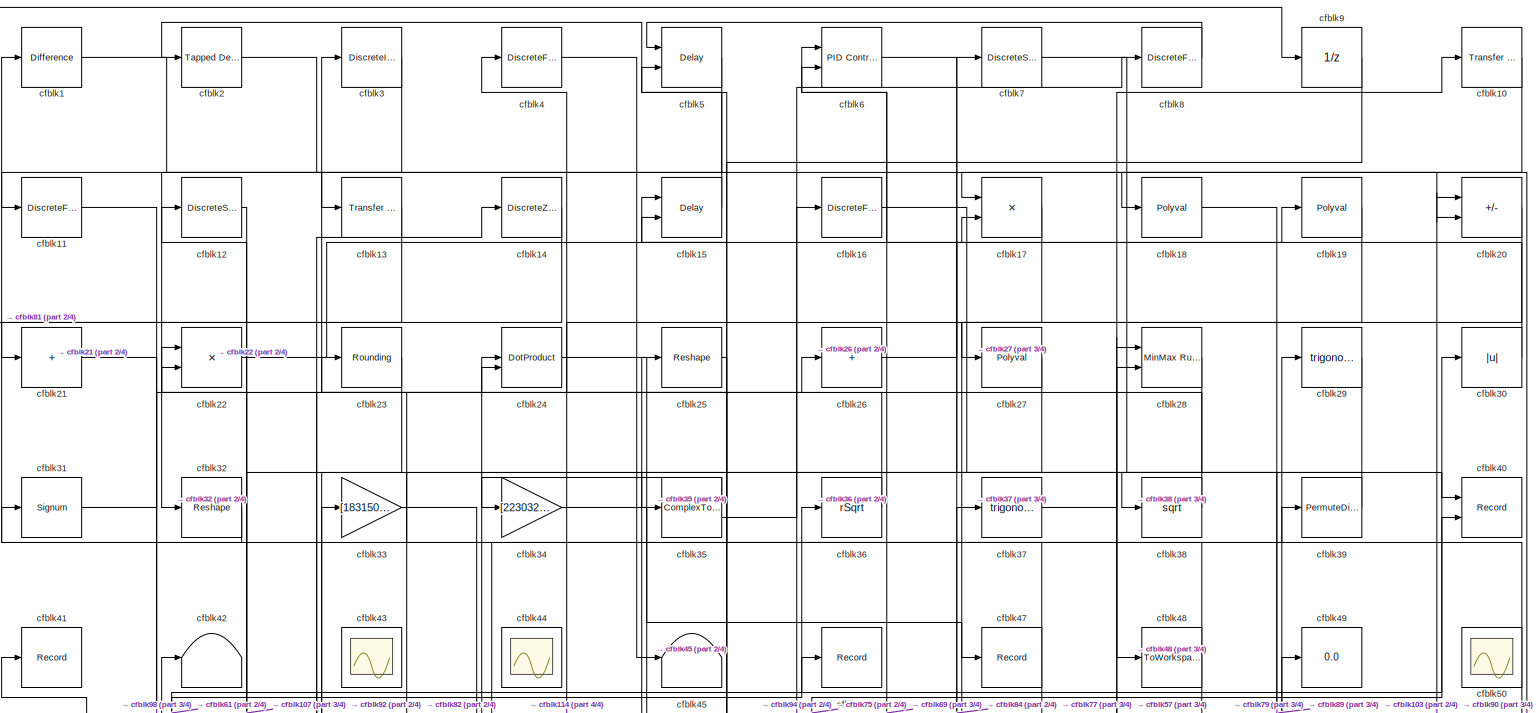
[diagram: root canvas - part 1/4, full width, top band]
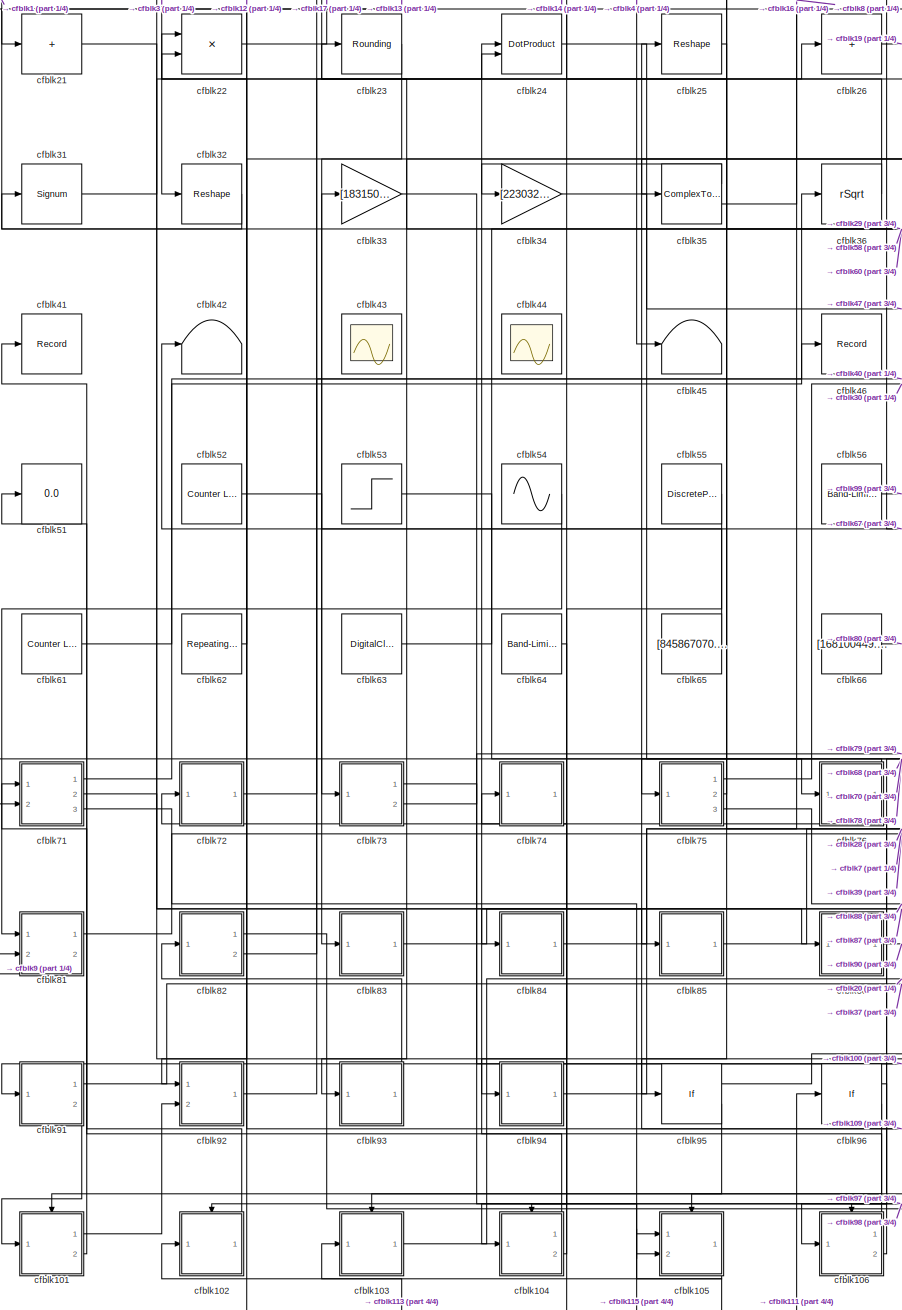
[diagram: root canvas - part 2/4, left side, full height]
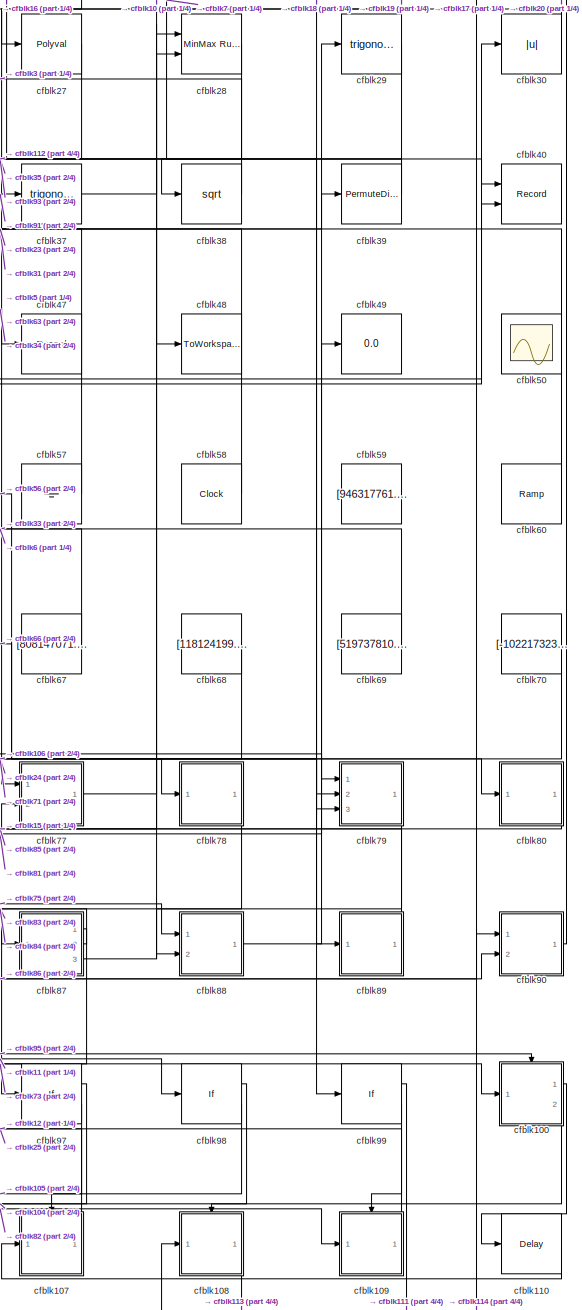
[diagram: root canvas - part 3/4, right side, full height]
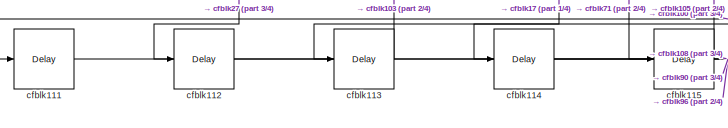
[diagram: root canvas - part 4/4, bottom left region]
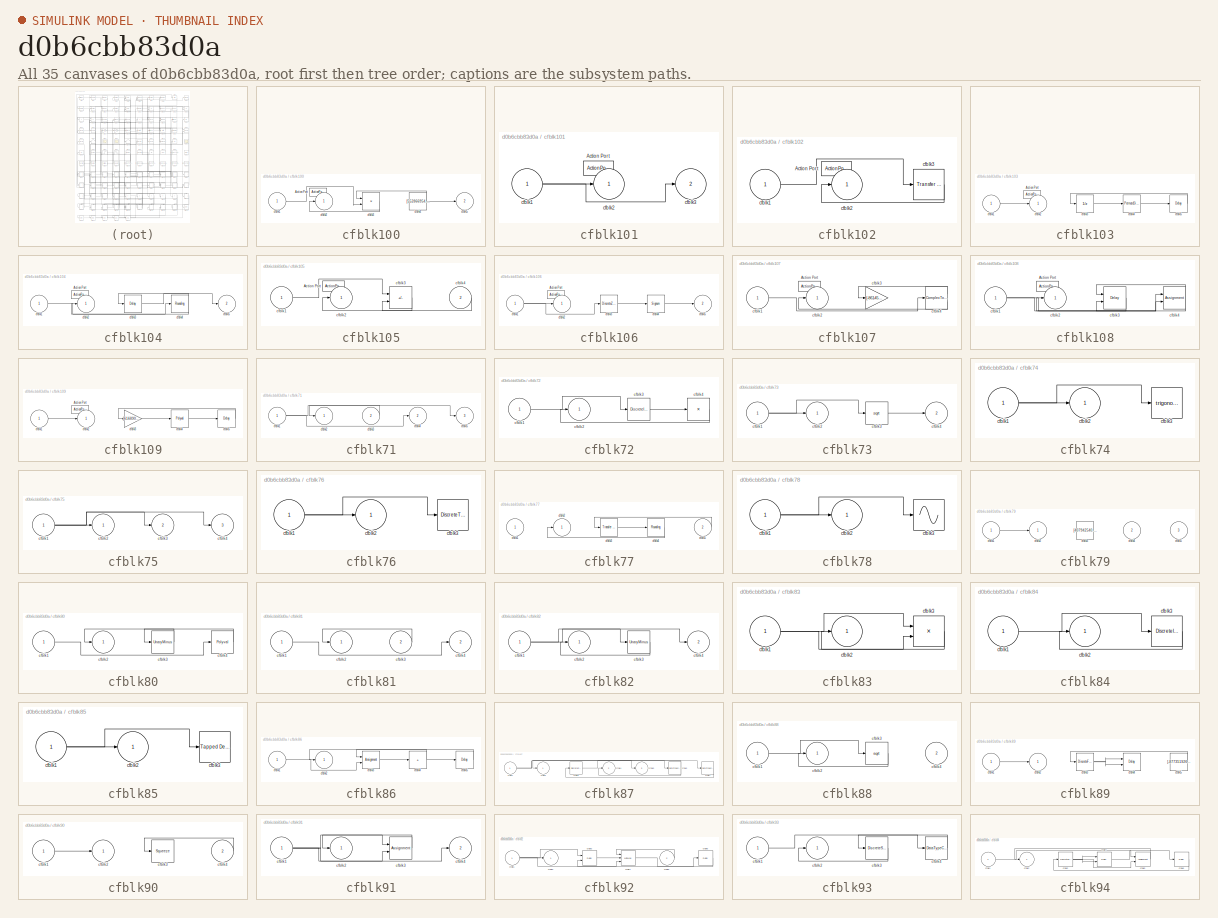
[diagram: thumbnail index - all 35 canvases of the model, root first then tree order]
MODEL slx_d0b6cbb83d0a
KIND model
CONFIG AbsTol = auto
CONFIG EnableMultiTasking = off
CONFIG FixedStep = auto
CONFIG MaxStep = auto
CONFIG MinStep = auto
CONFIG RelTol = 1e-3
CONFIG SampleTimeConstraint = Unconstrained
CONFIG SolverName = VariableStepAuto
CONFIG StartTime = 0.0
CONFIG StopTime = 10.0
BLOCK [Reference] cfblk1  REF=simulink/Discrete/Difference
  Ports = [1, 1]
  SourceBlock = simulink/Discrete/Difference
  SourceProductBaseCode = SL
  SourceType = Difference
BLOCK [Reference] cfblk10  REF=simulink/Discrete/Transfer Fcn
First Order
  Ports = [1, 1]
  SourceBlock = simulink/Discrete/Transfer Fcn\nFirst Order
  SourceProductBaseCode = SL
  SourceType = First Order Transfer Fcn
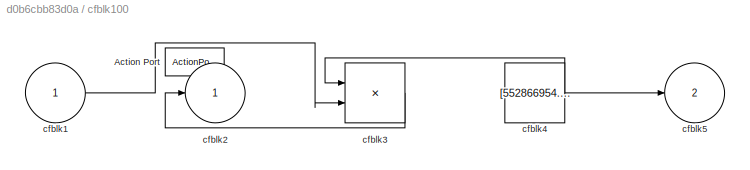
BLOCK [SubSystem] cfblk100
  Ports = [1, 2, 0, 0, 0, 0, 0, 1]
  RequestExecContextInheritance = off
  TreatAsAtomicUnit = on
BLOCK [ActionPort] cfblk100/Action Port
  ActionPortLabel = if(u1 >= 0)
BLOCK [Inport] cfblk100/cfblk1
BLOCK [Outport] cfblk100/cfblk2
BLOCK [Product] cfblk100/cfblk3
  Inputs = **
  Ports = [2, 1]
BLOCK [Constant] cfblk100/cfblk4
  SampleTime = 1
  Value = [552866954.088328]
BLOCK [Outport] cfblk100/cfblk5
  Port = 2
BLOCK [SubSystem] cfblk101
  Ports = [1, 2, 0, 0, 0, 0, 0, 1]
  RequestExecContextInheritance = off
  TreatAsAtomicUnit = on
BLOCK [ActionPort] cfblk101/Action Port
  ActionPortLabel = else
BLOCK [Inport] cfblk101/cfblk1
BLOCK [Outport] cfblk101/cfblk2
BLOCK [Outport] cfblk101/cfblk3
  Port = 2
BLOCK [SubSystem] cfblk102
  Ports = [1, 1, 0, 0, 0, 0, 0, 1]
  RequestExecContextInheritance = off
  TreatAsAtomicUnit = on
BLOCK [ActionPort] cfblk102/Action Port
  ActionPortLabel = if(u1 >= 0)
BLOCK [Inport] cfblk102/cfblk1
BLOCK [Outport] cfblk102/cfblk2
BLOCK [Reference] cfblk102/cfblk3  REF=simulink/Discrete/Transfer Fcn
Real Zero
  Ports = [1, 1]
  SourceBlock = simulink/Discrete/Transfer Fcn\nReal Zero
  SourceProductBaseCode = SL
  SourceType = Transfer Fcn Real Zero
BLOCK [SubSystem] cfblk103
  Ports = [1, 1, 0, 0, 0, 0, 0, 1]
  RequestExecContextInheritance = off
  TreatAsAtomicUnit = on
BLOCK [ActionPort] cfblk103/Action Port
  ActionPortLabel = else
BLOCK [Inport] cfblk103/cfblk1
BLOCK [Outport] cfblk103/cfblk2
BLOCK [UnitDelay] cfblk103/cfblk3
  HasFrameUpgradeWarning = on
  SampleTime = -1
BLOCK [PermuteDimensions] cfblk103/cfblk4
BLOCK [Delay] cfblk103/cfblk5
  InputPortMap = u0
  Ports = [1, 1]
BLOCK [SubSystem] cfblk104
  Ports = [1, 2, 0, 0, 0, 0, 0, 1]
  RequestExecContextInheritance = off
  TreatAsAtomicUnit = on
BLOCK [ActionPort] cfblk104/Action Port
  ActionPortLabel = if(u1 >= 0)
BLOCK [Inport] cfblk104/cfblk1
BLOCK [Outport] cfblk104/cfblk2
BLOCK [Delay] cfblk104/cfblk3
  InputPortMap = u0
  Ports = [1, 1]
BLOCK [Rounding] cfblk104/cfblk4
BLOCK [Outport] cfblk104/cfblk5
  Port = 2
BLOCK [SubSystem] cfblk105
  Ports = [2, 1, 0, 0, 0, 0, 0, 1]
  RequestExecContextInheritance = off
  TreatAsAtomicUnit = on
BLOCK [ActionPort] cfblk105/Action Port
  ActionPortLabel = else
BLOCK [Inport] cfblk105/cfblk1
BLOCK [Outport] cfblk105/cfblk2
BLOCK [Sum] cfblk105/cfblk3
  IconShape = rectangular
  Inputs = +-
  Ports = [2, 1]
BLOCK [Inport] cfblk105/cfblk4
  Port = 2
BLOCK [SubSystem] cfblk106
  Ports = [1, 2, 0, 0, 0, 0, 0, 1]
  RequestExecContextInheritance = off
  TreatAsAtomicUnit = on
BLOCK [ActionPort] cfblk106/Action Port
  ActionPortLabel = if(u1 >= 0)
BLOCK [Inport] cfblk106/cfblk1
BLOCK [Outport] cfblk106/cfblk2
BLOCK [DiscreteZeroPole] cfblk106/cfblk3
  Gain = 1
  Poles = [0 0.5]
  SampleTime = -1
BLOCK [Signum] cfblk106/cfblk4
BLOCK [Outport] cfblk106/cfblk5
  Port = 2
BLOCK [SubSystem] cfblk107
  Ports = [1, 1, 0, 0, 0, 0, 0, 1]
  RequestExecContextInheritance = off
  TreatAsAtomicUnit = on
BLOCK [ActionPort] cfblk107/Action Port
  ActionPortLabel = else
BLOCK [Inport] cfblk107/cfblk1
BLOCK [Outport] cfblk107/cfblk2
BLOCK [Gain] cfblk107/cfblk3
  Gain = [-861458571.569973]
BLOCK [ComplexToMagnitudeAngle] cfblk107/cfblk4
  Ports = [1, 2]
BLOCK [SubSystem] cfblk108
  Ports = [1, 1, 0, 0, 0, 0, 0, 1]
  RequestExecContextInheritance = off
  TreatAsAtomicUnit = on
BLOCK [ActionPort] cfblk108/Action Port
  ActionPortLabel = if(u1 >= 0)
BLOCK [Inport] cfblk108/cfblk1
BLOCK [Outport] cfblk108/cfblk2
BLOCK [Delay] cfblk108/cfblk3
  DelayLengthSource = Input port
  InputPortMap = u0,p1
  Ports = [2, 1]
BLOCK [Assignment] cfblk108/cfblk4
  DiagnosticForDimensions = Warning
  IndexOptions = Index vector (dialog)
  Indices = 1
  OutputSizes = 1
  Ports = [2, 1]
BLOCK [SubSystem] cfblk109
  Ports = [1, 1, 0, 0, 0, 0, 0, 1]
  RequestExecContextInheritance = off
  TreatAsAtomicUnit = on
BLOCK [ActionPort] cfblk109/Action Port
  ActionPortLabel = else
BLOCK [Inport] cfblk109/cfblk1
BLOCK [Outport] cfblk109/cfblk2
BLOCK [Gain] cfblk109/cfblk3
  Gain = [616890022.619520]
BLOCK [Polyval] cfblk109/cfblk4
  Coefs = [ +2.081618890e-019, -1.441693666e-014, +4.719686976e-010, -8.536869453e-006, +1.621573104e-001, -8.087801117e+001 ]
BLOCK [Delay] cfblk109/cfblk5
  InputPortMap = u0
  Ports = [1, 1]
BLOCK [DiscreteFilter] cfblk11
  InputPortMap = u0
  Ports = [1, 1]
  SampleTime = 1
BLOCK [Delay] cfblk110
  InputPortMap = u0
  Ports = [1, 1]
  SampleTime = 1
BLOCK [Delay] cfblk111
  InputPortMap = u0
  Ports = [1, 1]
  SampleTime = 1
BLOCK [Delay] cfblk112
  InputPortMap = u0
  Ports = [1, 1]
  SampleTime = 1
BLOCK [Delay] cfblk113
  InputPortMap = u0
  Ports = [1, 1]
  SampleTime = 1
BLOCK [Delay] cfblk114
  InputPortMap = u0
  Ports = [1, 1]
  SampleTime = 1
BLOCK [Delay] cfblk115
  InputPortMap = u0
  Ports = [1, 1]
  SampleTime = 1
BLOCK [DiscreteStateSpace] cfblk12
BLOCK [Reference] cfblk13  REF=simulink/Discrete/Transfer Fcn
First Order
  Ports = [1, 1]
  SourceBlock = simulink/Discrete/Transfer Fcn\nFirst Order
  SourceProductBaseCode = SL
  SourceType = First Order Transfer Fcn
BLOCK [DiscreteZeroPole] cfblk14
  Gain = 1
  Poles = [0 0.5]
BLOCK [Delay] cfblk15
  InputPortMap = u0,e6
  Ports = [2, 1]
  SampleTime = 1
  ShowEnablePort = on
BLOCK [DiscreteFir] cfblk16
  InputPortMap = u0
  OutputPortMap = o0
  Ports = [1, 1]
  SampleTime = 1
BLOCK [Product] cfblk17
  Ports = [2, 1]
BLOCK [Polyval] cfblk18
  Coefs = [ +2.081618890e-019, -1.441693666e-014, +4.719686976e-010, -8.536869453e-006, +1.621573104e-001, -8.087801117e+001 ]
BLOCK [Polyval] cfblk19
  Coefs = [ +2.081618890e-019, -1.441693666e-014, +4.719686976e-010, -8.536869453e-006, +1.621573104e-001, -8.087801117e+001 ]
BLOCK [Reference] cfblk2  REF=simulink/Discrete/Tapped Delay
  Ports = [1, 1]
  SourceBlock = simulink/Discrete/Tapped Delay
  SourceProductBaseCode = SL
  SourceType = Tapped Delay Line
BLOCK [Sum] cfblk20
  IconShape = rectangular
  Inputs = +-
  Ports = [2, 1]
BLOCK [Sum] cfblk21
  IconShape = rectangular
  Inputs = +
  Ports = [1, 1]
BLOCK [Product] cfblk22
  Inputs = **
  Ports = [2, 1]
BLOCK [Rounding] cfblk23
BLOCK [DotProduct] cfblk24
  OutDataTypeStr = Inherit: Inherit via internal rule
BLOCK [Reshape] cfblk25
  Ports = [1, 1]
BLOCK [Sum] cfblk26
  IconShape = rectangular
  Inputs = +
  Ports = [1, 1]
BLOCK [Polyval] cfblk27
  Coefs = [ +2.081618890e-019, -1.441693666e-014, +4.719686976e-010, -8.536869453e-006, +1.621573104e-001, -8.087801117e+001 ]
BLOCK [Reference] cfblk28  REF=simulink/Math
Operations/MinMax
Running
Resettable
  Ports = [2, 1]
  SourceBlock = simulink/Math\nOperations/MinMax\nRunning\nResettable
  SourceProductBaseCode = SL
  SourceType = MinMax Running Resettable
BLOCK [Trigonometry] cfblk29
  Ports = [1, 1]
BLOCK [DiscreteIntegrator] cfblk3
  ICPrevOutput = DiscIntNeverNeededParam
  ICPrevScaledInput = DiscIntNeverNeededParam
  InitialConditionSetting = Auto
  Ports = [1, 1]
BLOCK [Abs] cfblk30
  SaturateOnIntegerOverflow = off
BLOCK [Signum] cfblk31
BLOCK [Reshape] cfblk32
  Ports = [1, 1]
BLOCK [Gain] cfblk33
  Gain = [183150775.314273]
BLOCK [Gain] cfblk34
  Gain = [223032388.179430]
BLOCK [ComplexToRealImag] cfblk35
  Ports = [1, 2]
BLOCK [Sqrt] cfblk36
  AlgorithmType = Newton-Raphson
  Operator = rSqrt
BLOCK [Trigonometry] cfblk37
  Ports = [1, 1]
BLOCK [Sqrt] cfblk38
BLOCK [PermuteDimensions] cfblk39
BLOCK [DiscreteFilter] cfblk4
  InputPortMap = u0
  Ports = [1, 1]
  SampleTime = 1
BLOCK [Record] cfblk40
  CompatibilityTag = XY
  FileSettingsInternal = {"entries":[{"content":{"excelSettings":{"content":{},"type":"Streamout.ExcelSettings"}},"type":"Streamout.FileSettingStorage","uuid":"4b90652c-f2d3-47f2-a44e-bcf3a3fec26d"}],"packageUris":["http://schema.mathworks.com/mf0/streamout_blocks/R2020a"],"version":"1.0"}
  Layout = [1 1]
  Ports = [2]
  SignalsInternal = {"entries":[{"content":{"signals":[{"content":{"blockPath":["sampleModel119/cfblk40"],"channel":[],"dimensions":[1],"domain":"sampleModel119/cfblk40","lineColor":"#a2142f","plots":[1],"port":1,"sid":[""],"signalID":4151,"signalName":"cfblk6"},"type":"RecordBlkView.Signal","uuid":"d5e0444b-39c8-4732-8124-8d2ee03c9154"},{"content":{"blockPath":["sampleModel119/cfblk40"],"channel":[],"dimensions":[1]...<+382ch>
  VisualizationBindings = {"xyplotplugin":{"info":[{"series":[{"bindingParametersList":[{"parameter":"X-Axis","signalID":4151,"signalName":"cfblk6"},{"parameter":"Y-Axis","signalID":4155,"signalName":"cfblk61"}],"seriesID":3220}],"subplotID":1}]}}
BLOCK [Record] cfblk41
  FileSettingsInternal = {"entries":[{"content":{"excelSettings":{"content":{},"type":"Streamout.ExcelSettings"}},"type":"Streamout.FileSettingStorage","uuid":"8c36c4d4-0469-459e-8325-57697a053134"}],"packageUris":["http://schema.mathworks.com/mf0/streamout_blocks/R2020a"],"version":"1.0"}
  Ports = [1]
  SignalsInternal = {"entries":[{"content":{"signals":[{"content":{"blockPath":["sampleModel119/cfblk41"],"channel":[],"dimensions":[1],"domain":"sampleModel119/cfblk41","lineColor":"#fe330a","plots":[1],"port":1,"sid":[""],"signalID":4159,"signalName":"cfblk104:1"},"type":"RecordBlkView.Signal","uuid":"6d2d44fb-15cd-4da0-8e52-60f91c5e197b"}]},"type":"RecordBlkView.InputSignals","uuid":"76cdbd26-62aa-4d26-a689-d7fa75...<+100ch>
  VisualizationBindings = {"sparklinesplugin":{"info":[{"bindingParametersList":[],"subplotID":1}]}}
BLOCK [Terminator] cfblk42
BLOCK [Scope] cfblk43
  Floating = on
  NumInputPorts = 1
  Ports = []
BLOCK [Scope] cfblk44
  Floating = on
  NumInputPorts = 1
  Ports = []
BLOCK [Terminator] cfblk45
BLOCK [Record] cfblk46
  FileSettingsInternal = {"entries":[{"content":{"excelSettings":{"content":{},"type":"Streamout.ExcelSettings"}},"type":"Streamout.FileSettingStorage","uuid":"35d2fa41-f68c-4e08-ac86-24c0cc6052f6"}],"packageUris":["http://schema.mathworks.com/mf0/streamout_blocks/R2020a"],"version":"1.0"}
  Ports = [1]
  SignalsInternal = {"entries":[{"content":{"signals":[{"content":{"blockPath":["sampleModel119/cfblk46"],"channel":[],"dimensions":[1],"domain":"sampleModel119/cfblk46","lineColor":"#22b573","plots":[1],"port":1,"sid":[""],"signalID":4163,"signalName":"cfblk72"},"type":"RecordBlkView.Signal","uuid":"6c816a1f-c12f-4d80-813e-4e8bf75e3cfa"}]},"type":"RecordBlkView.InputSignals","uuid":"aab32150-6d44-4daa-b8cf-e47eaa1a1...<+97ch>
  VisualizationBindings = {"sparklinesplugin":{"info":[{"bindingParametersList":[],"subplotID":1}]}}
BLOCK [Record] cfblk47
  FileSettingsInternal = {"entries":[{"content":{"excelSettings":{"content":{},"type":"Streamout.ExcelSettings"}},"type":"Streamout.FileSettingStorage","uuid":"1cc15422-dbef-4f88-bbe8-034119ca05b7"}],"packageUris":["http://schema.mathworks.com/mf0/streamout_blocks/R2020a"],"version":"1.0"}
  Ports = [1]
  SignalsInternal = {"entries":[{"content":{"signals":[{"content":{"blockPath":["sampleModel119/cfblk47"],"channel":[],"dimensions":[1,1],"domain":"sampleModel119/cfblk47","lineColor":"#0072bd","plots":[1],"port":1,"sid":[""],"signalID":4167,"signalName":"cfblk34"},"type":"RecordBlkView.Signal","uuid":"1ed8d035-bae1-4148-97b8-32f6098d1f51"}]},"type":"RecordBlkView.InputSignals","uuid":"92e54281-6170-43a9-afc8-92f9430...<+99ch>
  VisualizationBindings = {"sparklinesplugin":{"info":[{"bindingParametersList":[],"subplotID":1}]}}
BLOCK [ToWorkspace] cfblk48
  FixptAsFi = on
  MaxDataPoints = inf
  Ports = [1]
  SampleTime = -1
  SaveFormat = Timeseries
  VariableName = xvvmdrc
BLOCK [Display] cfblk49
  Decimation = 1
  Ports = [1]
BLOCK [Delay] cfblk5
  InputPortMap = u0,e6
  Ports = [2, 1]
  SampleTime = 1
  ShowEnablePort = on
BLOCK [Scope] cfblk50
  Floating = on
  NumInputPorts = 1
  Ports = []
BLOCK [Display] cfblk51
  Decimation = 1
  Ports = [1]
BLOCK [Reference] cfblk52  REF=simulink/Sources/Counter
Limited
  Ports = [0, 1]
  SourceBlock = simulink/Sources/Counter\nLimited
  SourceProductBaseCode = SL
  SourceType = Counter Limited
BLOCK [Step] cfblk53
  After = [835001809.897906]
  Before = [46179549.003824]
  SampleTime = 0
  Time = [34.000000]
BLOCK [Sin] cfblk54
  Amplitude = [-89702734.800295]
  Bias = [573127760.762597]
  Ports = [0, 1]
  SampleTime = 0
BLOCK [DiscretePulseGenerator] cfblk55
  Amplitude = [-241727286.164151]
  Period = [40925784.883433]
  PhaseDelay = [9.000000]
  Ports = [0, 1]
  PulseType = Time based
  PulseWidth = 5
BLOCK [Reference] cfblk56  REF=simulink/Sources/Band-Limited
White Noise
  Ports = [0, 1]
  SourceBlock = simulink/Sources/Band-Limited\nWhite Noise
  SourceProductBaseCode = SL
  SourceType = Band-Limited White Noise.
BLOCK [Ground] cfblk57
BLOCK [Clock] cfblk58
BLOCK [Constant] cfblk59
  SampleTime = 1
  Value = [946317761.598464]
BLOCK [Reference] cfblk6  REF=slpidlib/PID Controller (2DOF)
  Ports = [2, 1]
  SourceBlock = slpidlib/PID Controller (2DOF)
  SourceProductBaseCode = SL
  SourceType = PID 2dof
BLOCK [Reference] cfblk60  REF=simulink/Sources/Ramp
  Ports = [0, 1]
  SourceBlock = simulink/Sources/Ramp
  SourceProductBaseCode = SL
  SourceType = Ramp
BLOCK [Reference] cfblk61  REF=simulink/Sources/Counter
Limited
  Ports = [0, 1]
  SourceBlock = simulink/Sources/Counter\nLimited
  SourceProductBaseCode = SL
  SourceType = Counter Limited
BLOCK [Reference] cfblk62  REF=simulink/Sources/Repeating
Sequence
  Ports = [0, 1]
  SourceBlock = simulink/Sources/Repeating\nSequence
  SourceProductBaseCode = SL
  SourceType = Repeating table
BLOCK [DigitalClock] cfblk63
BLOCK [Reference] cfblk64  REF=simulink/Sources/Band-Limited
White Noise
  Ports = [0, 1]
  SourceBlock = simulink/Sources/Band-Limited\nWhite Noise
  SourceProductBaseCode = SL
  SourceType = Band-Limited White Noise.
BLOCK [Constant] cfblk65
  SampleTime = 1
  Value = [845867070.469069]
BLOCK [Constant] cfblk66
  SampleTime = 1
  Value = [168100449.039612]
BLOCK [Constant] cfblk67
  SampleTime = 1
  Value = [808147071.301330]
BLOCK [Constant] cfblk68
  SampleTime = 1
  Value = [118124199.165252]
BLOCK [Constant] cfblk69
  SampleTime = 1
  Value = [519737810.353768]
BLOCK [DiscreteStateSpace] cfblk7
BLOCK [Constant] cfblk70
  SampleTime = 1
  Value = [-102217323.494420]
BLOCK [SubSystem] cfblk71
  Ports = [2, 3]
  RequestExecContextInheritance = off
BLOCK [Inport] cfblk71/cfblk1
BLOCK [Outport] cfblk71/cfblk2
BLOCK [Inport] cfblk71/cfblk3
  Port = 2
BLOCK [Outport] cfblk71/cfblk4
  Port = 2
BLOCK [Outport] cfblk71/cfblk5
  Port = 3
BLOCK [SubSystem] cfblk72
  Ports = [1, 1]
  RequestExecContextInheritance = off
BLOCK [Inport] cfblk72/cfblk1
BLOCK [Outport] cfblk72/cfblk2
BLOCK [DiscreteIntegrator] cfblk72/cfblk3
  ICPrevOutput = DiscIntNeverNeededParam
  ICPrevScaledInput = DiscIntNeverNeededParam
  InitialConditionSetting = Auto
  Ports = [1, 1]
BLOCK [Product] cfblk72/cfblk4
  Inputs = *
  Ports = [1, 1]
BLOCK [SubSystem] cfblk73
  Ports = [1, 2]
  RequestExecContextInheritance = off
BLOCK [Inport] cfblk73/cfblk1
BLOCK [Outport] cfblk73/cfblk2
BLOCK [Sqrt] cfblk73/cfblk3
BLOCK [Outport] cfblk73/cfblk4
  Port = 2
BLOCK [SubSystem] cfblk74
  Ports = [1, 1]
  RequestExecContextInheritance = off
BLOCK [Inport] cfblk74/cfblk1
BLOCK [Outport] cfblk74/cfblk2
BLOCK [Trigonometry] cfblk74/cfblk3
  Ports = [1, 1]
BLOCK [SubSystem] cfblk75
  Ports = [1, 3]
  RequestExecContextInheritance = off
BLOCK [Inport] cfblk75/cfblk1
BLOCK [Outport] cfblk75/cfblk2
BLOCK [Outport] cfblk75/cfblk3
  Port = 2
BLOCK [Outport] cfblk75/cfblk4
  Port = 3
BLOCK [SubSystem] cfblk76
  Ports = [1, 1]
  RequestExecContextInheritance = off
BLOCK [Inport] cfblk76/cfblk1
BLOCK [Outport] cfblk76/cfblk2
BLOCK [DiscreteTransferFcn] cfblk76/cfblk3
  InputPortMap = u0
  Ports = [1, 1]
  SampleTime = 1
BLOCK [SubSystem] cfblk77
  Ports = [2, 1]
  RequestExecContextInheritance = off
BLOCK [Inport] cfblk77/cfblk1
BLOCK [Outport] cfblk77/cfblk2
BLOCK [Reference] cfblk77/cfblk3  REF=simulink/Discrete/Transfer Fcn
Real Zero
  Ports = [1, 1]
  SourceBlock = simulink/Discrete/Transfer Fcn\nReal Zero
  SourceProductBaseCode = SL
  SourceType = Transfer Fcn Real Zero
BLOCK [Rounding] cfblk77/cfblk4
BLOCK [Inport] cfblk77/cfblk5
  Port = 2
BLOCK [SubSystem] cfblk78
  Ports = [1, 1]
  RequestExecContextInheritance = off
BLOCK [Inport] cfblk78/cfblk1
BLOCK [Outport] cfblk78/cfblk2
BLOCK [Sin] cfblk78/cfblk3
  Ports = [1, 1]
  SampleTime = 0
  TimeSource = Use external signal
BLOCK [SubSystem] cfblk79
  Ports = [3, 1]
  RequestExecContextInheritance = off
BLOCK [Inport] cfblk79/cfblk1
BLOCK [Outport] cfblk79/cfblk2
BLOCK [Constant] cfblk79/cfblk3
  SampleTime = 1
  Value = [407942540.240208]
BLOCK [Inport] cfblk79/cfblk4
  Port = 2
BLOCK [Inport] cfblk79/cfblk5
  Port = 3
BLOCK [DiscreteFir] cfblk8
  InputPortMap = u0
  OutputPortMap = o0
  Ports = [1, 1]
  SampleTime = 1
BLOCK [SubSystem] cfblk80
  Ports = [1, 1]
  RequestExecContextInheritance = off
BLOCK [Inport] cfblk80/cfblk1
BLOCK [Outport] cfblk80/cfblk2
BLOCK [UnaryMinus] cfblk80/cfblk3
BLOCK [Polyval] cfblk80/cfblk4
  Coefs = [ +2.081618890e-019, -1.441693666e-014, +4.719686976e-010, -8.536869453e-006, +1.621573104e-001, -8.087801117e+001 ]
BLOCK [SubSystem] cfblk81
  Ports = [2, 2]
  RequestExecContextInheritance = off
BLOCK [Inport] cfblk81/cfblk1
BLOCK [Outport] cfblk81/cfblk2
BLOCK [Inport] cfblk81/cfblk3
  Port = 2
BLOCK [Outport] cfblk81/cfblk4
  Port = 2
BLOCK [SubSystem] cfblk82
  Ports = [1, 2]
  RequestExecContextInheritance = off
BLOCK [Inport] cfblk82/cfblk1
BLOCK [Outport] cfblk82/cfblk2
BLOCK [UnaryMinus] cfblk82/cfblk3
BLOCK [Outport] cfblk82/cfblk4
  Port = 2
BLOCK [SubSystem] cfblk83
  Ports = [1, 1]
  RequestExecContextInheritance = off
BLOCK [Inport] cfblk83/cfblk1
BLOCK [Outport] cfblk83/cfblk2
BLOCK [Product] cfblk83/cfblk3
  Inputs = **
  Ports = [2, 1]
BLOCK [SubSystem] cfblk84
  Ports = [1, 1]
  RequestExecContextInheritance = off
BLOCK [Inport] cfblk84/cfblk1
BLOCK [Outport] cfblk84/cfblk2
BLOCK [DiscreteIntegrator] cfblk84/cfblk3
  ICPrevOutput = DiscIntNeverNeededParam
  ICPrevScaledInput = DiscIntNeverNeededParam
  InitialConditionSetting = Auto
  Ports = [1, 1]
BLOCK [SubSystem] cfblk85
  Ports = [1, 1]
  RequestExecContextInheritance = off
BLOCK [Inport] cfblk85/cfblk1
BLOCK [Outport] cfblk85/cfblk2
BLOCK [Reference] cfblk85/cfblk3  REF=simulink/Discrete/Tapped Delay
  Ports = [1, 1]
  SourceBlock = simulink/Discrete/Tapped Delay
  SourceProductBaseCode = SL
  SourceType = Tapped Delay Line
BLOCK [SubSystem] cfblk86
  Ports = [1, 1]
  RequestExecContextInheritance = off
BLOCK [Inport] cfblk86/cfblk1
BLOCK [Outport] cfblk86/cfblk2
BLOCK [Assignment] cfblk86/cfblk3
  DiagnosticForDimensions = Warning
  IndexOptions = Index vector (dialog)
  Indices = 1
  OutputSizes = 1
  Ports = [2, 1]
BLOCK [Sum] cfblk86/cfblk4
  IconShape = rectangular
  Inputs = +
  Ports = [1, 1]
BLOCK [Delay] cfblk86/cfblk5
  InputPortMap = u0
  Ports = [1, 1]
  SampleTime = 1
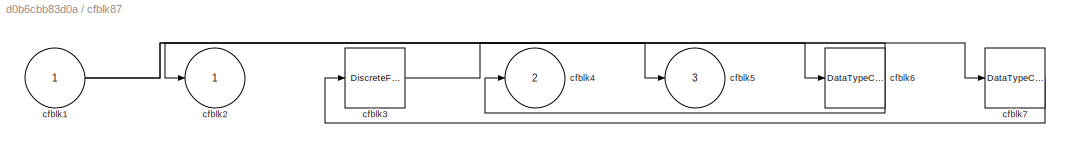
BLOCK [SubSystem] cfblk87
  Ports = [1, 3]
  RequestExecContextInheritance = off
BLOCK [Inport] cfblk87/cfblk1
BLOCK [Outport] cfblk87/cfblk2
BLOCK [DiscreteFilter] cfblk87/cfblk3
  InputPortMap = u0
  Ports = [1, 1]
  SampleTime = 1
BLOCK [Outport] cfblk87/cfblk4
  Port = 2
BLOCK [Outport] cfblk87/cfblk5
  Port = 3
BLOCK [DataTypeConversion] cfblk87/cfblk6
  RndMeth = Floor
  SaturateOnIntegerOverflow = off
BLOCK [DataTypeConversion] cfblk87/cfblk7
  RndMeth = Floor
  SaturateOnIntegerOverflow = off
BLOCK [SubSystem] cfblk88
  Ports = [2, 1]
  RequestExecContextInheritance = off
BLOCK [Inport] cfblk88/cfblk1
BLOCK [Outport] cfblk88/cfblk2
BLOCK [Sqrt] cfblk88/cfblk3
BLOCK [Inport] cfblk88/cfblk4
  Port = 2
BLOCK [SubSystem] cfblk89
  Ports = [1, 1]
  RequestExecContextInheritance = off
BLOCK [Inport] cfblk89/cfblk1
BLOCK [Outport] cfblk89/cfblk2
BLOCK [DiscreteFir] cfblk89/cfblk3
  InputPortMap = u0
  OutputPortMap = o0
  Ports = [1, 1]
  SampleTime = 1
BLOCK [Delay] cfblk89/cfblk4
  DelayLengthSource = Input port
  InputPortMap = u0,p1
  Ports = [2, 1]
  SampleTime = 1
BLOCK [Constant] cfblk89/cfblk5
  SampleTime = 1
  Value = [-877351926.643604]
BLOCK [UnitDelay] cfblk9
  HasFrameUpgradeWarning = on
BLOCK [SubSystem] cfblk90
  Ports = [2, 1]
  RequestExecContextInheritance = off
BLOCK [Inport] cfblk90/cfblk1
BLOCK [Outport] cfblk90/cfblk2
BLOCK [Squeeze] cfblk90/cfblk3
BLOCK [Inport] cfblk90/cfblk4
  Port = 2
BLOCK [SubSystem] cfblk91
  Ports = [1, 2]
  RequestExecContextInheritance = off
BLOCK [Inport] cfblk91/cfblk1
BLOCK [Outport] cfblk91/cfblk2
BLOCK [Assignment] cfblk91/cfblk3
  DiagnosticForDimensions = Warning
  IndexOptions = Index vector (dialog)
  Indices = 1
  OutputSizes = 1
  Ports = [2, 1]
BLOCK [Outport] cfblk91/cfblk4
  Port = 2
BLOCK [SubSystem] cfblk92
  Ports = [2, 1]
  RequestExecContextInheritance = off
BLOCK [Inport] cfblk92/cfblk1
BLOCK [Outport] cfblk92/cfblk2
BLOCK [Delay] cfblk92/cfblk3
  InputPortMap = u0,e6
  Ports = [2, 1]
  SampleTime = 1
  ShowEnablePort = on
BLOCK [MinMax] cfblk92/cfblk4
  Function = max
  Inputs = 3
  Ports = [3, 1]
BLOCK [Inport] cfblk92/cfblk5
  Port = 2
BLOCK [Delay] cfblk92/cfblk6
  InputPortMap = u0
  Ports = [1, 1]
  SampleTime = 1
BLOCK [SubSystem] cfblk93
  Ports = [1, 1]
  RequestExecContextInheritance = off
BLOCK [Inport] cfblk93/cfblk1
BLOCK [Outport] cfblk93/cfblk2
BLOCK [DiscreteStateSpace] cfblk93/cfblk3
BLOCK [DataTypeConversion] cfblk93/cfblk4
  RndMeth = Floor
  SaturateOnIntegerOverflow = off
BLOCK [SubSystem] cfblk94
  Ports = [1, 1]
  RequestExecContextInheritance = off
BLOCK [Inport] cfblk94/cfblk1
BLOCK [Outport] cfblk94/cfblk2
BLOCK [DiscreteFilter] cfblk94/cfblk3
  InputPortMap = u0
  Ports = [1, 1]
  SampleTime = 1
BLOCK [Delay] cfblk94/cfblk4
  InputPortMap = u0,e6
  Ports = [2, 1]
  SampleTime = 1
  ShowEnablePort = on
BLOCK [Assignment] cfblk94/cfblk5
  DiagnosticForDimensions = Warning
  IndexOptions = Index vector (dialog)
  Indices = 1
  OutputSizes = 1
  Ports = [2, 1]
BLOCK [Delay] cfblk94/cfblk6
  InputPortMap = u0
  Ports = [1, 1]
  SampleTime = 1
BLOCK [If] cfblk95
  IfExpression = u1 >= 0
  Ports = [1, 2]
  SampleTime = 1
BLOCK [If] cfblk96
  IfExpression = u1 >= 0
  Ports = [1, 2]
  SampleTime = 1
BLOCK [If] cfblk97
  IfExpression = u1 >= 0
  Ports = [1, 2]
  SampleTime = 1
BLOCK [If] cfblk98
  IfExpression = u1 >= 0
  Ports = [1, 2]
  SampleTime = 1
BLOCK [If] cfblk99
  IfExpression = u1 >= 0
  Ports = [1, 2]
  SampleTime = 1
LINE cfblk100/cfblk1:1 -> cfblk100/cfblk3:2
LINE cfblk100/cfblk3:1 -> cfblk100/cfblk2:1
NET cfblk100/cfblk4:1 -> cfblk100/cfblk3:1, cfblk100/cfblk5:1
LINE cfblk100:1 -> cfblk110:1
LINE cfblk100:2 -> cfblk111:1
NET cfblk101/cfblk1:1 -> cfblk101/cfblk2:1, cfblk101/cfblk3:1
LINE cfblk101:1 -> cfblk92:2
LINE cfblk101:2 -> cfblk51:1
LINE cfblk102/cfblk1:1 -> cfblk102/cfblk3:1
LINE cfblk102/cfblk3:1 -> cfblk102/cfblk2:1
LINE cfblk102:1 -> cfblk71:1
LINE cfblk103/cfblk1:1 -> cfblk103/cfblk2:1
LINE cfblk103/cfblk3:1 -> cfblk103/cfblk4:1
LINE cfblk103/cfblk4:1 -> cfblk103/cfblk5:1
LINE cfblk103/cfblk5:1 -> cfblk103/cfblk3:1
LINE cfblk103:1 -> cfblk20:1
LINE cfblk104/cfblk1:1 -> cfblk104/cfblk4:1
LINE cfblk104/cfblk3:1 -> cfblk104/cfblk5:1
NET cfblk104/cfblk4:1 -> cfblk104/cfblk2:1, cfblk104/cfblk3:1
LINE cfblk104:1 -> cfblk41:1
LINE cfblk104:2 -> cfblk74:1
LINE cfblk105/cfblk1:1 -> cfblk105/cfblk3:1
LINE cfblk105/cfblk3:1 -> cfblk105/cfblk2:1
LINE cfblk105/cfblk4:1 -> cfblk105/cfblk3:2
LINE cfblk105:1 -> cfblk102:1
NET cfblk106/cfblk1:1 -> cfblk106/cfblk2:1, cfblk106/cfblk3:1
LINE cfblk106/cfblk3:1 -> cfblk106/cfblk4:1
LINE cfblk106/cfblk4:1 -> cfblk106/cfblk5:1
LINE cfblk106:1 -> cfblk24:1
LINE cfblk106:2 -> cfblk72:1
LINE cfblk107/cfblk1:1 -> cfblk107/cfblk4:1
LINE cfblk107/cfblk4:1 -> cfblk107/cfblk3:1
LINE cfblk107/cfblk4:2 -> cfblk107/cfblk2:1
LINE cfblk107:1 -> cfblk12:1
NET cfblk108/cfblk1:1 -> cfblk108/cfblk4:1, cfblk108/cfblk4:2
LINE cfblk108/cfblk3:1 -> cfblk108/cfblk2:1
NET cfblk108/cfblk4:1 -> cfblk108/cfblk3:1, cfblk108/cfblk3:2
LINE cfblk108:1 -> cfblk113:1
LINE cfblk109/cfblk1:1 -> cfblk109/cfblk2:1
LINE cfblk109/cfblk3:1 -> cfblk109/cfblk4:1
LINE cfblk109/cfblk4:1 -> cfblk109/cfblk5:1
LINE cfblk109/cfblk5:1 -> cfblk109/cfblk3:1
LINE cfblk109:1 -> cfblk25:1
LINE cfblk10:1 -> cfblk18:1
LINE cfblk110:1 -> cfblk107:1
LINE cfblk111:1 -> cfblk96:1
LINE cfblk112:1 -> cfblk108:1
LINE cfblk113:1 -> cfblk103:1
LINE cfblk114:1 -> cfblk90:1
LINE cfblk115:1 -> cfblk105:1
LINE cfblk11:1 -> cfblk98:1
LINE cfblk12:1 -> cfblk92:1
LINE cfblk13:1 -> cfblk81:2
LINE cfblk14:1 -> cfblk21:1
LINE cfblk15:1 -> cfblk2:1
LINE cfblk16:1 -> cfblk48:1
LINE cfblk17:1 -> cfblk114:1
LINE cfblk18:1 -> cfblk79:3
LINE cfblk19:1 -> cfblk77:1
LINE cfblk1:1 -> cfblk13:1
LINE cfblk20:1 -> cfblk27:1
LINE cfblk21:1 -> cfblk86:1
LINE cfblk22:1 -> cfblk17:2
LINE cfblk23:1 -> cfblk73:1
LINE cfblk24:1 -> cfblk78:1
LINE cfblk25:1 -> cfblk95:1
LINE cfblk26:1 -> cfblk19:1
LINE cfblk27:1 -> cfblk112:1
LINE cfblk28:1 -> cfblk93:1
LINE cfblk29:1 -> cfblk38:1
LINE cfblk2:1 -> cfblk20:2
LINE cfblk30:1 -> cfblk6:1
LINE cfblk31:1 -> cfblk24:2
LINE cfblk32:1 -> cfblk1:1
LINE cfblk33:1 -> cfblk105:2
LINE cfblk34:1 -> cfblk47:1
LINE cfblk35:1 -> cfblk34:1
LINE cfblk35:2 -> cfblk8:1
LINE cfblk36:1 -> cfblk4:1
LINE cfblk37:1 -> cfblk10:1
LINE cfblk38:1 -> cfblk3:1
LINE cfblk39:1 -> cfblk35:1
LINE cfblk3:1 -> cfblk32:1
LINE cfblk4:1 -> cfblk45:1
LINE cfblk52:1 -> cfblk83:1
LINE cfblk53:1 -> cfblk76:1
LINE cfblk54:1 -> cfblk81:1
LINE cfblk55:1 -> cfblk104:1
LINE cfblk56:1 -> cfblk99:1
LINE cfblk57:1 -> cfblk5:2
LINE cfblk58:1 -> cfblk23:1
LINE cfblk5:1 -> cfblk11:1
LINE cfblk60:1 -> cfblk31:1
LINE cfblk61:1 -> cfblk40:2
LINE cfblk62:1 -> cfblk22:1
LINE cfblk63:1 -> cfblk29:1
LINE cfblk64:1 -> cfblk94:1
LINE cfblk65:1 -> cfblk42:1
LINE cfblk66:1 -> cfblk80:1
LINE cfblk67:1 -> cfblk33:1
LINE cfblk68:1 -> cfblk71:2
LINE cfblk69:1 -> cfblk6:2
LINE cfblk6:1 -> cfblk40:1
LINE cfblk70:1 -> cfblk106:1
NET cfblk71/cfblk1:1 -> cfblk71/cfblk4:1, cfblk71/cfblk5:1
LINE cfblk71/cfblk3:1 -> cfblk71/cfblk2:1
LINE cfblk71:1 -> cfblk36:1
LINE cfblk71:2 -> cfblk85:1
LINE cfblk71:3 -> cfblk115:1
LINE cfblk72/cfblk1:1 -> cfblk72/cfblk3:1
LINE cfblk72/cfblk3:1 -> cfblk72/cfblk4:1
LINE cfblk72/cfblk4:1 -> cfblk72/cfblk2:1
LINE cfblk72:1 -> cfblk46:1
NET cfblk73/cfblk1:1 -> cfblk73/cfblk2:1, cfblk73/cfblk3:1
LINE cfblk73/cfblk3:1 -> cfblk73/cfblk4:1
LINE cfblk73:1 -> cfblk100:1
LINE cfblk73:2 -> cfblk79:1
NET cfblk74/cfblk1:1 -> cfblk74/cfblk2:1, cfblk74/cfblk3:1
NET cfblk75/cfblk1:1 -> cfblk75/cfblk2:1, cfblk75/cfblk3:1, cfblk75/cfblk4:1
LINE cfblk75:1 -> cfblk30:1
LINE cfblk75:2 -> cfblk22:2
LINE cfblk75:3 -> cfblk88:1
NET cfblk76/cfblk1:1 -> cfblk76/cfblk2:1, cfblk76/cfblk3:1
LINE cfblk76:1 -> cfblk75:1
LINE cfblk77/cfblk3:1 -> cfblk77/cfblk4:1
LINE cfblk77/cfblk4:1 -> cfblk77/cfblk2:1
LINE cfblk77/cfblk5:1 -> cfblk77/cfblk3:1
LINE cfblk77:1 -> cfblk79:2
NET cfblk78/cfblk1:1 -> cfblk78/cfblk2:1, cfblk78/cfblk3:1
LINE cfblk78:1 -> cfblk97:1
LINE cfblk79/cfblk1:1 -> cfblk79/cfblk2:1
LINE cfblk79:1 -> cfblk88:2
LINE cfblk7:1 -> cfblk89:1
LINE cfblk80/cfblk1:1 -> cfblk80/cfblk4:1
LINE cfblk80/cfblk3:1 -> cfblk80/cfblk2:1
LINE cfblk80/cfblk4:1 -> cfblk80/cfblk3:1
LINE cfblk80:1 -> cfblk77:2
LINE cfblk81/cfblk1:1 -> cfblk81/cfblk4:1
LINE cfblk81/cfblk3:1 -> cfblk81/cfblk2:1
LINE cfblk81:1 -> cfblk39:1
LINE cfblk81:2 -> cfblk9:1
NET cfblk82/cfblk1:1 -> cfblk82/cfblk3:1, cfblk82/cfblk4:1
LINE cfblk82/cfblk3:1 -> cfblk82/cfblk2:1
LINE cfblk82:1 -> cfblk109:1
LINE cfblk82:2 -> cfblk14:1
NET cfblk83/cfblk1:1 -> cfblk83/cfblk3:1, cfblk83/cfblk3:2
LINE cfblk83/cfblk3:1 -> cfblk83/cfblk2:1
LINE cfblk83:1 -> cfblk87:1
LINE cfblk84/cfblk1:1 -> cfblk84/cfblk3:1
LINE cfblk84/cfblk3:1 -> cfblk84/cfblk2:1
LINE cfblk84:1 -> cfblk7:1
NET cfblk85/cfblk1:1 -> cfblk85/cfblk2:1, cfblk85/cfblk3:1
LINE cfblk85:1 -> cfblk28:2
LINE cfblk86/cfblk1:1 -> cfblk86/cfblk3:2
LINE cfblk86/cfblk3:1 -> cfblk86/cfblk4:1
NET cfblk86/cfblk4:1 -> cfblk86/cfblk2:1, cfblk86/cfblk5:1
LINE cfblk86/cfblk5:1 -> cfblk86/cfblk3:1
LINE cfblk86:1 -> cfblk90:2
NET cfblk87/cfblk1:1 -> cfblk87/cfblk5:1, cfblk87/cfblk7:1
LINE cfblk87/cfblk3:1 -> cfblk87/cfblk6:1
NET cfblk87/cfblk6:1 -> cfblk87/cfblk2:1, cfblk87/cfblk4:1
LINE cfblk87/cfblk7:1 -> cfblk87/cfblk3:1
LINE cfblk87:1 -> cfblk91:1
LINE cfblk87:2 -> cfblk84:1
LINE cfblk87:3 -> cfblk28:1
LINE cfblk88/cfblk1:1 -> cfblk88/cfblk3:1
LINE cfblk88/cfblk3:1 -> cfblk88/cfblk2:1
LINE cfblk88:1 -> cfblk49:1
LINE cfblk89/cfblk1:1 -> cfblk89/cfblk2:1
NET cfblk89/cfblk3:1 -> cfblk89/cfblk4:1, cfblk89/cfblk4:2
LINE cfblk89/cfblk5:1 -> cfblk89/cfblk3:1
LINE cfblk89:1 -> cfblk15:2
LINE cfblk8:1 -> cfblk5:1
LINE cfblk90/cfblk1:1 -> cfblk90/cfblk2:1
LINE cfblk90/cfblk4:1 -> cfblk90/cfblk3:1
LINE cfblk90:1 -> cfblk17:1
NET cfblk91/cfblk1:1 -> cfblk91/cfblk3:1, cfblk91/cfblk3:2, cfblk91/cfblk4:1
LINE cfblk91/cfblk3:1 -> cfblk91/cfblk2:1
LINE cfblk91:1 -> cfblk37:1
LINE cfblk91:2 -> cfblk101:1
NET cfblk92/cfblk1:1 -> cfblk92/cfblk2:1, cfblk92/cfblk3:1, cfblk92/cfblk4:3
LINE cfblk92/cfblk3:1 -> cfblk92/cfblk4:2
LINE cfblk92/cfblk4:1 -> cfblk92/cfblk6:1
LINE cfblk92/cfblk5:1 -> cfblk92/cfblk4:1
LINE cfblk92/cfblk6:1 -> cfblk92/cfblk3:2
LINE cfblk92:1 -> cfblk26:1
LINE cfblk93/cfblk1:1 -> cfblk93/cfblk4:1
LINE cfblk93/cfblk3:1 -> cfblk93/cfblk2:1
LINE cfblk93/cfblk4:1 -> cfblk93/cfblk3:1
LINE cfblk93:1 -> cfblk82:1
LINE cfblk94/cfblk1:1 -> cfblk94/cfblk5:1
NET cfblk94/cfblk3:1 -> cfblk94/cfblk4:1, cfblk94/cfblk4:2, cfblk94/cfblk5:2
LINE cfblk94/cfblk4:1 -> cfblk94/cfblk6:1
LINE cfblk94/cfblk5:1 -> cfblk94/cfblk2:1
LINE cfblk94/cfblk6:1 -> cfblk94/cfblk3:1
LINE cfblk94:1 -> cfblk16:1
LINE cfblk95:1 -> cfblk100:ifaction
LINE cfblk95:2 -> cfblk101:ifaction
LINE cfblk96:1 -> cfblk102:ifaction
LINE cfblk96:2 -> cfblk103:ifaction
LINE cfblk97:1 -> cfblk104:ifaction
LINE cfblk97:2 -> cfblk105:ifaction
LINE cfblk98:1 -> cfblk106:ifaction
LINE cfblk98:2 -> cfblk107:ifaction
LINE cfblk99:1 -> cfblk108:ifaction
LINE cfblk99:2 -> cfblk109:ifaction
LINE cfblk9:1 -> cfblk15:1
note: NET lines group one-source signal fan-out (src -> all destinations, sorted); 1:1 wires keep LINE
